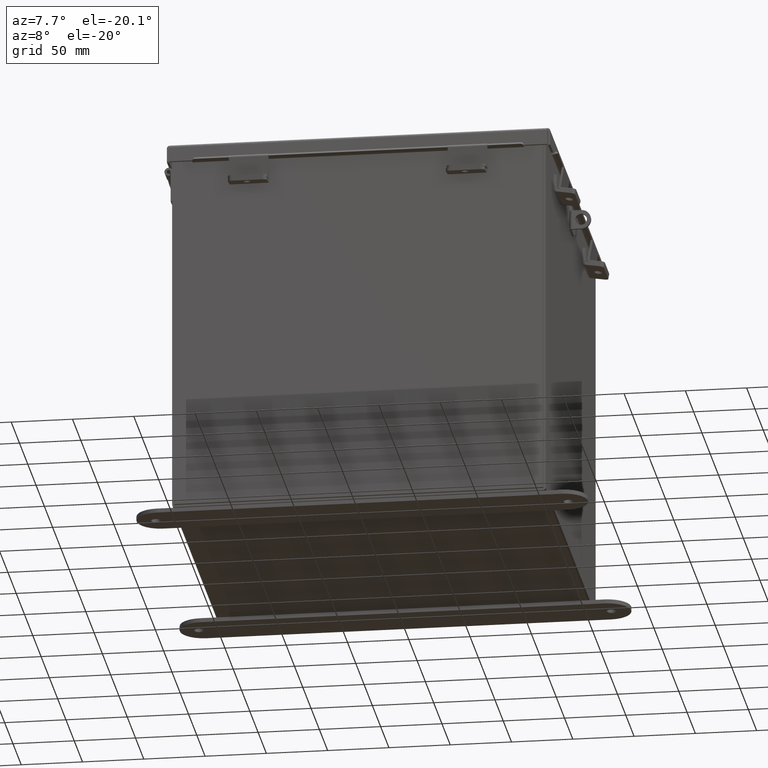
[diagram: clean part render]
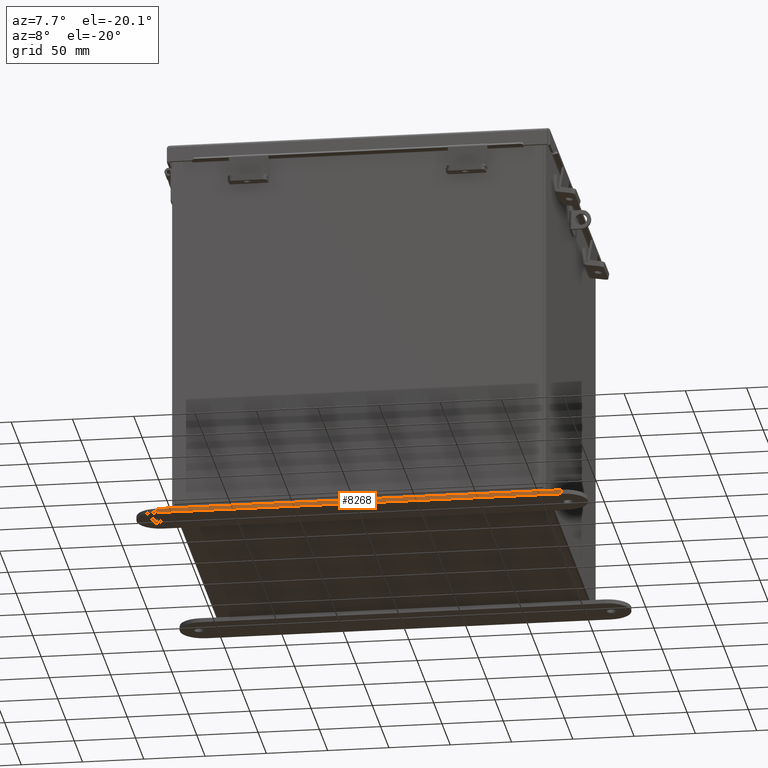
[diagram: same view with one face highlighted and labeled with its STEP entity id]
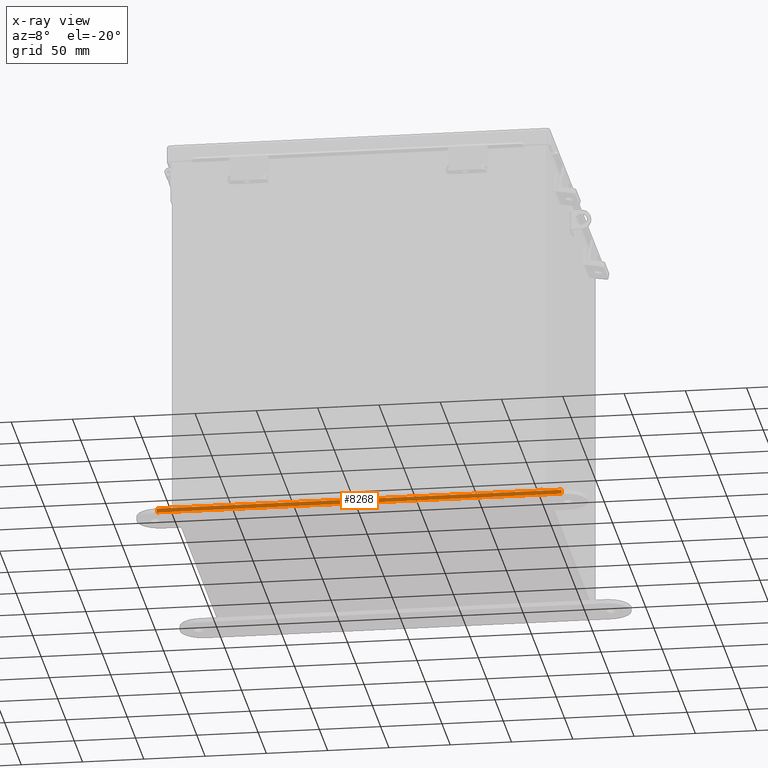
[diagram: x-ray of the same camera — body ghosted, the highlighted face saturated]
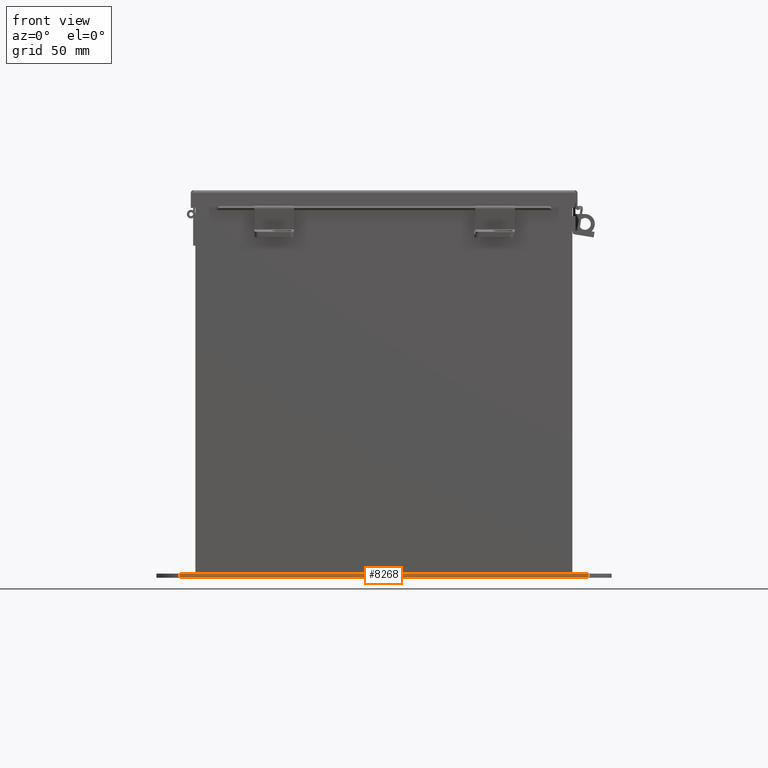
[diagram: same view with one face highlighted and labeled with its STEP entity id]
A machine part, auxiliary view. The second image highlights one B-rep face of the part: STEP entity #8268.
The next image is the same camera in x-ray: the body ghosted, the highlighted face saturated — about 0% of this face is hidden behind the body in this view.
A second angle (front view) of the same face is appended — the face is thin or edge-on in the first view.
In plain terms, the highlighted planar face has unit normal (-0, -1, 0).
Its self-contained STEP definition (entity closure, byte-faithful):
#155 = ORIENTED_EDGE ( 'NONE', *, *, #3089, .T. ) ;
#1142 = DIRECTION ( 'NONE',  ( 0.0000000000000000000, 0.0000000000000000000, 1.000000000000000000 ) ) ;
#1479 = DIRECTION ( 'NONE',  ( 1.000000000000000000, -1.260852920152736700E-016, 0.0000000000000000000 ) ) ;
#1687 = AXIS2_PLACEMENT_3D ( 'NONE', #2166, #14185, #13828 ) ;
#1960 = ORIENTED_EDGE ( 'NONE', *, *, #2889, .F. ) ;
#2166 = CARTESIAN_POINT ( 'NONE',  ( -6.500000000000000000, -0.3379059350503871900, -0.1345000000000000100 ) ) ;
#2179 = VECTOR ( 'NONE', #1142, 39.37007874015748100 ) ;
#2358 = ORIENTED_EDGE ( 'NONE', *, *, #4654, .T. ) ;
#2616 = VERTEX_POINT ( 'NONE', #6664 ) ;
#2642 = CARTESIAN_POINT ( 'NONE',  ( 6.500000000000000000, -0.3379059350503894100, -0.1345000000000000100 ) ) ;
#2889 = EDGE_CURVE ( 'NONE', #4683, #2616, #5879, .T. ) ;
#3089 = EDGE_CURVE ( 'NONE', #4683, #7867, #13599, .T. ) ;
#4131 = DIRECTION ( 'NONE',  ( 1.000000000000000000, -1.260852920152736700E-016, 0.0000000000000000000 ) ) ;
#4240 = CARTESIAN_POINT ( 'NONE',  ( 6.500000000000000000, -0.3379059350503894100, -0.1345000000000000100 ) ) ;
#4654 = EDGE_CURVE ( 'NONE', #7867, #14967, #14383, .T. ) ;
#4683 = VERTEX_POINT ( 'NONE', #5246 ) ;
#4811 = CARTESIAN_POINT ( 'NONE',  ( -6.500000000000000000, -0.3379059350503871900, 0.0000000000000000000 ) ) ;
#4947 = VECTOR ( 'NONE', #6997, 39.37007874015748100 ) ;
#5055 = EDGE_CURVE ( 'NONE', #2616, #14967, #8483, .T. ) ;
#5246 = CARTESIAN_POINT ( 'NONE',  ( -6.500000000000000000, -0.3379059350503871900, -0.1345000000000000100 ) ) ;
#5879 = LINE ( 'NONE', #6058, #4947 ) ;
#6058 = CARTESIAN_POINT ( 'NONE',  ( -6.500000000000000000, -0.3379059350503871900, -0.1345000000000000100 ) ) ;
#6664 = CARTESIAN_POINT ( 'NONE',  ( -6.500000000000000000, -0.3379059350503871900, 0.0000000000000000000 ) ) ;
#6997 = DIRECTION ( 'NONE',  ( 0.0000000000000000000, 0.0000000000000000000, 1.000000000000000000 ) ) ;
#7014 = CARTESIAN_POINT ( 'NONE',  ( -6.500000000000000000, -0.3379059350503871900, -0.1345000000000000100 ) ) ;
#7140 = VECTOR ( 'NONE', #1479, 39.37007874015748100 ) ;
#7867 = VERTEX_POINT ( 'NONE', #4240 ) ;
#8268 = ADVANCED_FACE ( 'NONE', ( #8532 ), #8952, .T. ) ;
#8338 = VECTOR ( 'NONE', #4131, 39.37007874015748100 ) ;
#8483 = LINE ( 'NONE', #4811, #7140 ) ;
#8532 = FACE_OUTER_BOUND ( 'NONE', #8987, .T. ) ;
#8952 = PLANE ( 'NONE',  #1687 ) ;
#8987 = EDGE_LOOP ( 'NONE', ( #11057, #1960, #155, #2358 ) ) ;
#11057 = ORIENTED_EDGE ( 'NONE', *, *, #5055, .F. ) ;
#13599 = LINE ( 'NONE', #7014, #8338 ) ;
#13828 = DIRECTION ( 'NONE',  ( 1.000000000000000000, -1.260852920152736700E-016, 0.0000000000000000000 ) ) ;
#14185 = DIRECTION ( 'NONE',  ( -1.260852920152736700E-016, -1.000000000000000000, 0.0000000000000000000 ) ) ;
#14383 = LINE ( 'NONE', #2642, #2179 ) ;
#14705 = CARTESIAN_POINT ( 'NONE',  ( 6.500000000000000000, -0.3379059350503894100, 0.0000000000000000000 ) ) ;
#14967 = VERTEX_POINT ( 'NONE', #14705 ) ;